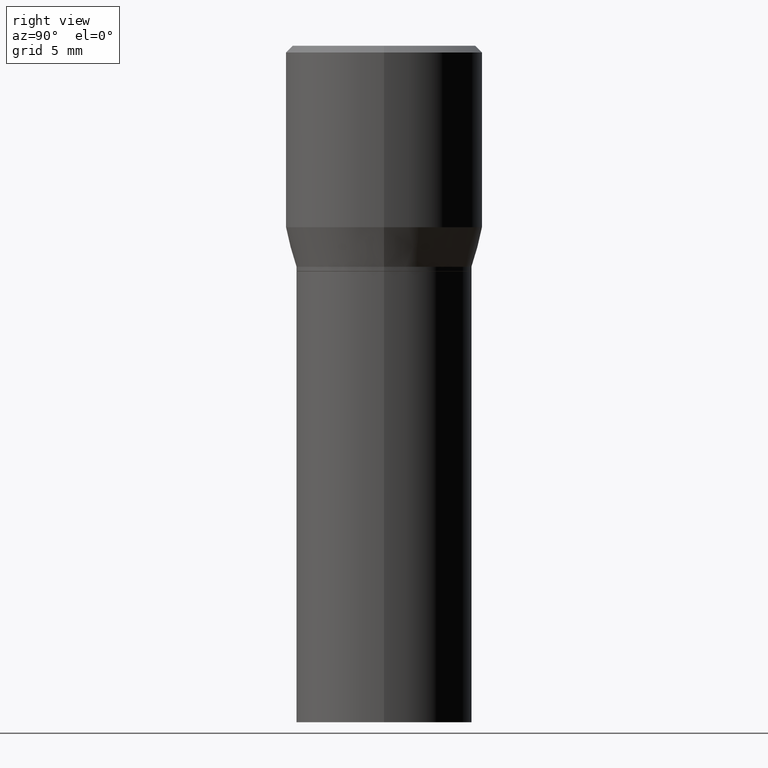
[diagram: clean part render]
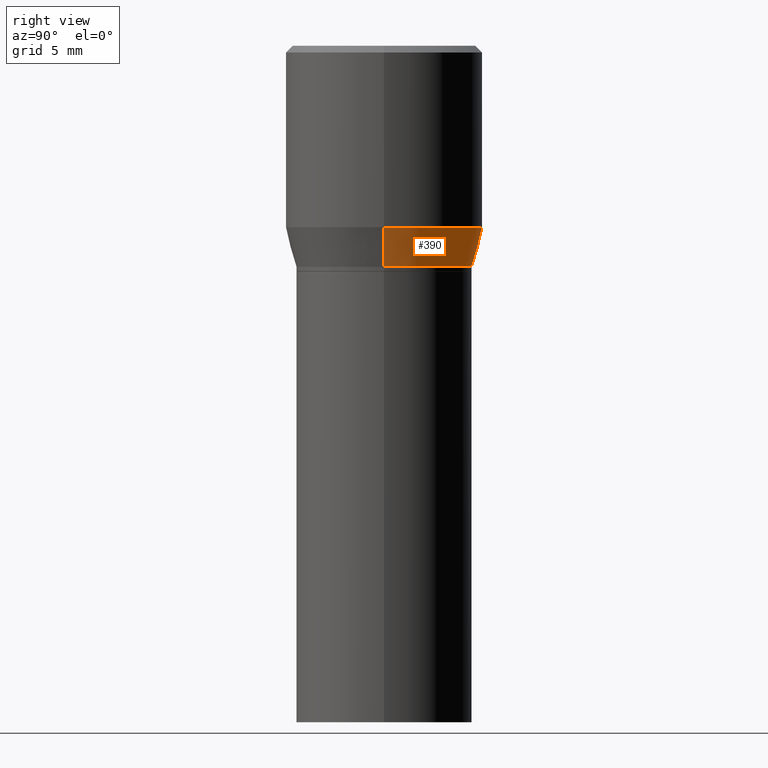
[diagram: same view with one face highlighted and labeled with its STEP entity id]
A machine part, right view. The second image highlights one B-rep face of the part: STEP entity #390.
In plain terms, the highlighted conical surface has half-angle 15 deg.
Its self-contained STEP definition (entity closure, byte-faithful):
#3 = CARTESIAN_POINT ( 'NONE',  ( -0.1952999999999999736, -3.231358930936662090E-16, -0.4900000000000001021 ) ) ;
#14 = EDGE_CURVE ( 'NONE', #396, #152, #409, .T. ) ;
#16 = CARTESIAN_POINT ( 'NONE',  ( -0.1952999999999999736, -8.704348440421619739E-17, -0.4900000000000001021 ) ) ;
#18 = DIRECTION ( 'NONE',  ( 1.000000000000000000, -6.982962677686265922E-15, 0.000000000000000000 ) ) ;
#35 = ORIENTED_EDGE ( 'NONE', *, *, #119, .T. ) ;
#52 = FACE_OUTER_BOUND ( 'NONE', #440, .T. ) ;
#58 = DIRECTION ( 'NONE',  ( -2.445468806185136597E-29, 3.491481338843145583E-15, 1.000000000000000000 ) ) ;
#67 = AXIS2_PLACEMENT_3D ( 'NONE', #209, #447, #341 ) ;
#92 = AXIS2_PLACEMENT_3D ( 'NONE', #384, #58, #18 ) ;
#108 = DIRECTION ( 'NONE',  ( -2.445468806185136597E-29, 3.491481338843145583E-15, 1.000000000000000000 ) ) ;
#119 = EDGE_CURVE ( 'NONE', #263, #396, #347, .T. ) ;
#122 = CARTESIAN_POINT ( 'NONE',  ( 0.1952999999999999736, -3.074598466985269231E-15, -0.4900000000000001021 ) ) ;
#139 = CARTESIAN_POINT ( 'NONE',  ( 9.842606206466859638E-30, -1.405263310189985589E-15, -0.4024834085625100810 ) ) ;
#151 = CARTESIAN_POINT ( 'NONE',  ( 0.1952999999999999736, -3.074598466985269231E-15, -0.4900000000000001021 ) ) ;
#152 = VERTEX_POINT ( 'NONE', #327 ) ;
#161 = ORIENTED_EDGE ( 'NONE', *, *, #268, .F. ) ;
#167 = CARTESIAN_POINT ( 'NONE',  ( 0.2187500000000000000, -2.932786395933856235E-15, -0.4024834085625100810 ) ) ;
#178 = ORIENTED_EDGE ( 'NONE', *, *, #374, .F. ) ;
#196 = ORIENTED_EDGE ( 'NONE', *, *, #14, .T. ) ;
#209 = CARTESIAN_POINT ( 'NONE',  ( 1.198279715030717173E-29, -1.710825856033141537E-15, -0.4900000000000001021 ) ) ;
#212 = VECTOR ( 'NONE', #272, 39.37007874015747433 ) ;
#259 = DIRECTION ( 'NONE',  ( 1.000000000000000000, -6.982962677686266711E-15, 0.000000000000000000 ) ) ;
#263 = VERTEX_POINT ( 'NONE', #151 ) ;
#268 = EDGE_CURVE ( 'NONE', #407, #152, #329, .T. ) ;
#272 = DIRECTION ( 'NONE',  ( 0.2588190451025214611, 1.565188264969621573E-15, 0.9659258262890682012 ) ) ;
#299 = LINE ( 'NONE', #122, #212 ) ;
#327 = CARTESIAN_POINT ( 'NONE',  ( -0.2187500000000000000, 1.490489242852337896E-16, -0.4024834085625100810 ) ) ;
#329 = CIRCLE ( 'NONE', #422, 0.2187500000000000000 ) ;
#333 = VECTOR ( 'NONE', #338, 39.37007874015747433 ) ;
#338 = DIRECTION ( 'NONE',  ( -0.2588190451025214611, 5.211531920934551042E-15, 0.9659258262890682012 ) ) ;
#341 = DIRECTION ( 'NONE',  ( 1.000000000000000000, -6.982962677686265922E-15, 0.000000000000000000 ) ) ;
#347 = CIRCLE ( 'NONE', #92, 0.1952999999999999736 ) ;
#374 = EDGE_CURVE ( 'NONE', #263, #407, #299, .T. ) ;
#384 = CARTESIAN_POINT ( 'NONE',  ( 1.198279715030717173E-29, -1.710825856033141537E-15, -0.4900000000000001021 ) ) ;
#390 = ADVANCED_FACE ( 'NONE', ( #52 ), #434, .T. ) ;
#396 = VERTEX_POINT ( 'NONE', #16 ) ;
#407 = VERTEX_POINT ( 'NONE', #167 ) ;
#409 = LINE ( 'NONE', #3, #333 ) ;
#422 = AXIS2_PLACEMENT_3D ( 'NONE', #139, #108, #259 ) ;
#434 = CONICAL_SURFACE ( 'NONE', #67, 0.1952999999999999736, 0.2617993877991501295 ) ;
#440 = EDGE_LOOP ( 'NONE', ( #35, #196, #161, #178 ) ) ;
#447 = DIRECTION ( 'NONE',  ( -2.445468806185136597E-29, 3.491481338843145583E-15, 1.000000000000000000 ) ) ;